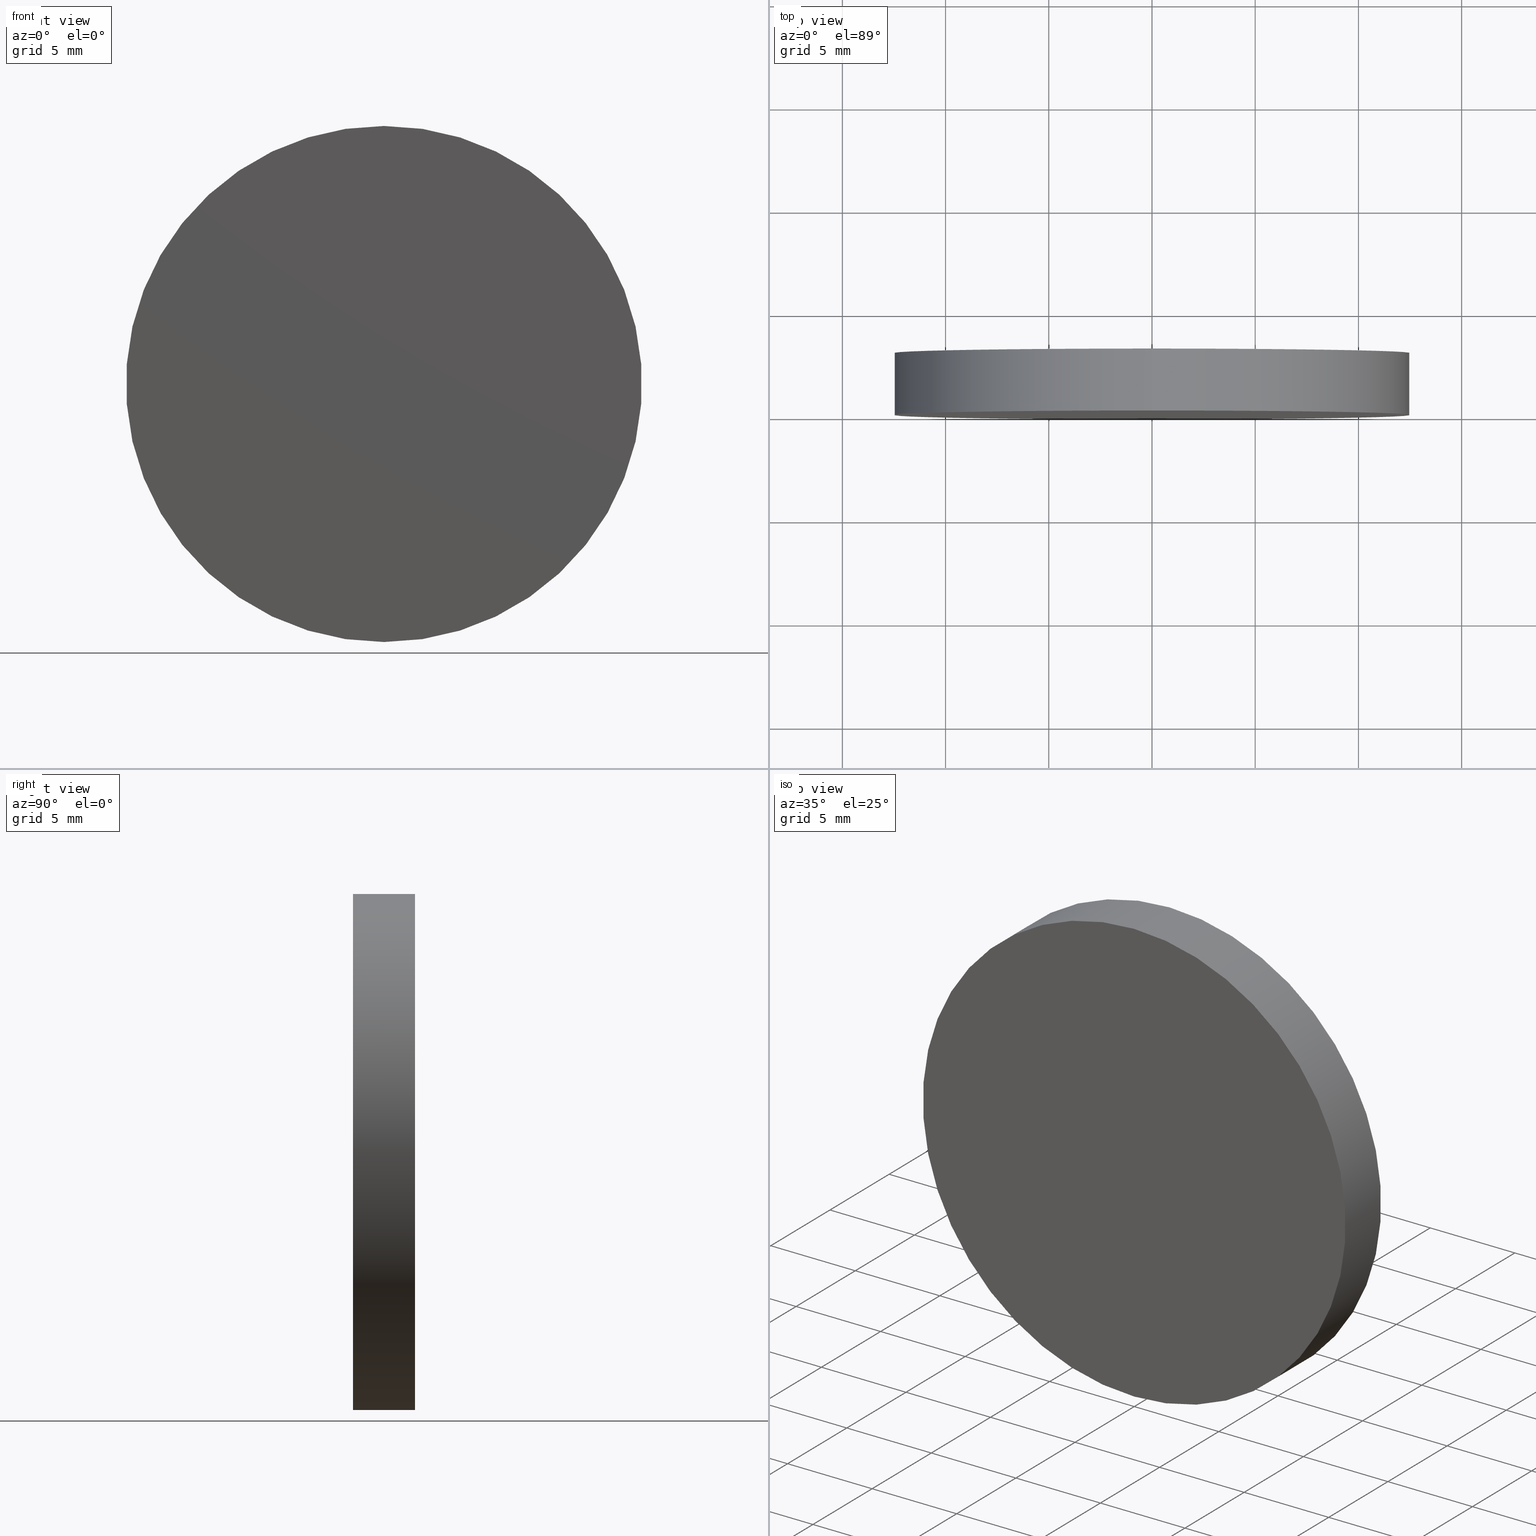
[diagram: canonical four-view strip — front | top / right | iso, engineering-drawing reading convention]
A machine part, canonical four-view strip (front | top / right | iso — engineering-drawing reading convention). The complete STEP part file that produces these views, byte-faithful:
ISO-10303-21;
HEADER;
FILE_DESCRIPTION (( 'STEP AP214' ),
    '1' );
FILE_NAME ('345503.STEP',
    '2019-08-12T02:55:29',
    ( 'user' ),
    ( '΢���й�' ),
    'SwSTEP 2.0',
    'SolidWorks 2016',
    '' );
FILE_SCHEMA (( 'AUTOMOTIVE_DESIGN' ));
ENDSEC;

DATA;
#1 = APPLICATION_CONTEXT ( 'automotive_design' ) ;
#2 = UNCERTAINTY_MEASURE_WITH_UNIT (LENGTH_MEASURE( 1.000000000000000100E-005 ), #45, 'distance_accuracy_value', 'NONE');
#3 = LINE ( 'NONE', #31, #53 ) ;
#4 =( GEOMETRIC_REPRESENTATION_CONTEXT ( 3 ) GLOBAL_UNCERTAINTY_ASSIGNED_CONTEXT ( ( #140 ) ) GLOBAL_UNIT_ASSIGNED_CONTEXT ( ( #108, #25, #97 ) ) REPRESENTATION_CONTEXT ( 'NONE', 'WORKASPACE' ) );
#5 = CIRCLE ( 'NONE', #113, 12.50000000000000000 ) ;
#6 = FILL_AREA_STYLE ('',( #7 ) ) ;
#7 = FILL_AREA_STYLE_COLOUR ( '', #50 ) ;
#8 = CARTESIAN_POINT ( 'NONE',  ( 1.530808498934191500E-015, 0.0000000000000000000, 12.50000000000000000 ) ) ;
#9 = DIRECTION ( 'NONE',  ( 0.0000000000000000000, 0.0000000000000000000, 1.000000000000000000 ) ) ;
#10 = MECHANICAL_DESIGN_GEOMETRIC_PRESENTATION_REPRESENTATION (  '', ( #67 ), #4 ) ;
#11 = SHAPE_DEFINITION_REPRESENTATION ( #30, #78 ) ;
#12 = EDGE_LOOP ( 'NONE', ( #99, #129 ) ) ;
#13 = VERTEX_POINT ( 'NONE', #8 ) ;
#14 = VERTEX_POINT ( 'NONE', #74 ) ;
#15 = ORIENTED_EDGE ( 'NONE', *, *, #125, .F. ) ;
#16 = DIRECTION ( 'NONE',  ( 0.0000000000000000000, 0.0000000000000000000, 1.000000000000000000 ) ) ;
#17 = DIRECTION ( 'NONE',  ( 0.0000000000000000000, 0.0000000000000000000, -1.000000000000000000 ) ) ;
#18 = CARTESIAN_POINT ( 'NONE',  ( 0.0000000000000000000, 3.000000000000000000, 0.0000000000000000000 ) ) ;
#19 = ADVANCED_FACE ( 'NONE', ( #23 ), #27, .T. ) ;
#20 = VERTEX_POINT ( 'NONE', #91 ) ;
#21 = CARTESIAN_POINT ( 'NONE',  ( 1.530808498934191500E-015, 3.000000000000000000, 12.50000000000000000 ) ) ;
#22 = EDGE_CURVE ( 'NONE', #14, #20, #114, .T. ) ;
#23 = FACE_OUTER_BOUND ( 'NONE', #130, .T. ) ;
#24 = DIRECTION ( 'NONE',  ( 0.0000000000000000000, 1.000000000000000000, 0.0000000000000000000 ) ) ;
#25 =( NAMED_UNIT ( * ) PLANE_ANGLE_UNIT ( ) SI_UNIT ( $, .RADIAN. ) );
#26 = CARTESIAN_POINT ( 'NONE',  ( 0.0000000000000000000, 3.000000000000000000, 0.0000000000000000000 ) ) ;
#27 = CYLINDRICAL_SURFACE ( 'NONE', #95, 12.50000000000000000 ) ;
#28 = CYLINDRICAL_SURFACE ( 'NONE', #76, 12.50000000000000000 ) ;
#29 = AXIS2_PLACEMENT_3D ( 'NONE', #48, #24, #96 ) ;
#30 = PRODUCT_DEFINITION_SHAPE ( 'NONE', 'NONE',  #38 ) ;
#31 = CARTESIAN_POINT ( 'NONE',  ( 1.530808498934191500E-015, 3.000000000000000000, 12.50000000000000000 ) ) ;
#32 = ORIENTED_EDGE ( 'NONE', *, *, #101, .F. ) ;
#33 = SURFACE_STYLE_USAGE ( .BOTH. , #117 ) ;
#34 = DIRECTION ( 'NONE',  ( -0.0000000000000000000, -1.000000000000000000, -0.0000000000000000000 ) ) ;
#35 = AXIS2_PLACEMENT_3D ( 'NONE', #106, #94, #16 ) ;
#36 = EDGE_LOOP ( 'NONE', ( #80, #41, #123, #100 ) ) ;
#37 = DIRECTION ( 'NONE',  ( 0.0000000000000000000, 0.0000000000000000000, 1.000000000000000000 ) ) ;
#38 = PRODUCT_DEFINITION ( 'δ֪', '', #49, #75 ) ;
#39 = SURFACE_STYLE_FILL_AREA ( #51 ) ;
#40 = PRESENTATION_LAYER_ASSIGNMENT (  '', '', ( #67 ) ) ;
#41 = ORIENTED_EDGE ( 'NONE', *, *, #101, .T. ) ;
#42 = AXIS2_PLACEMENT_3D ( 'NONE', #107, #73, #137 ) ;
#43 = DIRECTION ( 'NONE',  ( 1.000000000000000000, 0.0000000000000000000, 0.0000000000000000000 ) ) ;
#44 = FACE_OUTER_BOUND ( 'NONE', #12, .T. ) ;
#45 =( LENGTH_UNIT ( ) NAMED_UNIT ( * ) SI_UNIT ( .MILLI., .METRE. ) );
#46 =( LENGTH_UNIT ( ) NAMED_UNIT ( * ) SI_UNIT ( .MILLI., .METRE. ) );
#47 = EDGE_CURVE ( 'NONE', #14, #104, #87, .T. ) ;
#48 = CARTESIAN_POINT ( 'NONE',  ( 0.0000000000000000000, 3.000000000000000000, 0.0000000000000000000 ) ) ;
#49 = PRODUCT_DEFINITION_FORMATION_WITH_SPECIFIED_SOURCE ( '�κ�', '', #58, .NOT_KNOWN. ) ;
#50 = COLOUR_RGB ( '',1.000000000000000000, 1.000000000000000000, 1.000000000000000000 ) ;
#51 = FILL_AREA_STYLE ('',( #63 ) ) ;
#52 = DIRECTION ( 'NONE',  ( -0.0000000000000000000, -1.000000000000000000, -0.0000000000000000000 ) ) ;
#53 = VECTOR ( 'NONE', #139, 1000.000000000000000 ) ;
#54 = CIRCLE ( 'NONE', #35, 12.50000000000000000 ) ;
#55 = AXIS2_PLACEMENT_3D ( 'NONE', #72, #136, #124 ) ;
#56 =( NAMED_UNIT ( * ) SI_UNIT ( $, .STERADIAN. ) SOLID_ANGLE_UNIT ( ) );
#57 = PRODUCT_RELATED_PRODUCT_CATEGORY ( 'part', '', ( #58 ) ) ;
#58 = PRODUCT ( '345503', '345503', '', ( #115 ) ) ;
#59 = FACE_OUTER_BOUND ( 'NONE', #36, .T. ) ;
#60 = SURFACE_STYLE_USAGE ( .BOTH. , #135 ) ;
#61 = CARTESIAN_POINT ( 'NONE',  ( 0.0000000000000000000, 0.0000000000000000000, 0.0000000000000000000 ) ) ;
#62 = CARTESIAN_POINT ( 'NONE',  ( 0.0000000000000000000, 3.000000000000000000, 0.0000000000000000000 ) ) ;
#63 = FILL_AREA_STYLE_COLOUR ( '', #109 ) ;
#64 =( GEOMETRIC_REPRESENTATION_CONTEXT ( 3 ) GLOBAL_UNCERTAINTY_ASSIGNED_CONTEXT ( ( #118 ) ) GLOBAL_UNIT_ASSIGNED_CONTEXT ( ( #46, #116, #105 ) ) REPRESENTATION_CONTEXT ( 'NONE', 'WORKASPACE' ) );
#65 = ADVANCED_FACE ( 'NONE', ( #59 ), #28, .T. ) ;
#66 = DIRECTION ( 'NONE',  ( 0.0000000000000000000, 1.000000000000000000, 0.0000000000000000000 ) ) ;
#67 = STYLED_ITEM ( 'NONE', ( #119 ), #81 ) ;
#68 = ORIENTED_EDGE ( 'NONE', *, *, #69, .F. ) ;
#69 = EDGE_CURVE ( 'NONE', #13, #20, #5, .T. ) ;
#70 = PLANE ( 'NONE',  #42 ) ;
#71 = ORIENTED_EDGE ( 'NONE', *, *, #125, .T. ) ;
#72 = CARTESIAN_POINT ( 'NONE',  ( 0.0000000000000000000, 3.000000000000000000, 0.0000000000000000000 ) ) ;
#73 = DIRECTION ( 'NONE',  ( 0.0000000000000000000, 1.000000000000000000, 0.0000000000000000000 ) ) ;
#74 = CARTESIAN_POINT ( 'NONE',  ( 0.0000000000000000000, 3.000000000000000000, -12.50000000000000000 ) ) ;
#75 = PRODUCT_DEFINITION_CONTEXT ( 'detailed design', #1, 'design' ) ;
#76 = AXIS2_PLACEMENT_3D ( 'NONE', #26, #34, #98 ) ;
#77 = EDGE_LOOP ( 'NONE', ( #15, #68 ) ) ;
#78 = ADVANCED_BREP_SHAPE_REPRESENTATION ( '345503', ( #81, #122 ), #64 ) ;
#79 = STYLED_ITEM ( 'NONE', ( #128 ), #78 ) ;
#80 = ORIENTED_EDGE ( 'NONE', *, *, #131, .F. ) ;
#81 = MANIFOLD_SOLID_BREP ( '͹̨-����1', #112 ) ;
#82 = SURFACE_STYLE_FILL_AREA ( #6 ) ;
#83 = CIRCLE ( 'NONE', #55, 12.50000000000000000 ) ;
#84 = APPLICATION_CONTEXT ( 'automotive_design' ) ;
#85 = CARTESIAN_POINT ( 'NONE',  ( 0.0000000000000000000, 0.0000000000000000000, 0.0000000000000000000 ) ) ;
#86 = DIRECTION ( 'NONE',  ( 0.0000000000000000000, 1.000000000000000000, 0.0000000000000000000 ) ) ;
#87 = CIRCLE ( 'NONE', #89, 12.50000000000000000 ) ;
#88 = PRESENTATION_LAYER_ASSIGNMENT (  '', '', ( #79 ) ) ;
#89 = AXIS2_PLACEMENT_3D ( 'NONE', #18, #86, #9 ) ;
#90 = VECTOR ( 'NONE', #52, 1000.000000000000000 ) ;
#91 = CARTESIAN_POINT ( 'NONE',  ( 0.0000000000000000000, 0.0000000000000000000, -12.50000000000000000 ) ) ;
#92 = MECHANICAL_DESIGN_GEOMETRIC_PRESENTATION_REPRESENTATION (  '', ( #79 ), #103 ) ;
#93 = APPLICATION_PROTOCOL_DEFINITION ( 'draft international standard', 'automotive_design', 1998, #84 ) ;
#94 = DIRECTION ( 'NONE',  ( 0.0000000000000000000, 1.000000000000000000, 0.0000000000000000000 ) ) ;
#95 = AXIS2_PLACEMENT_3D ( 'NONE', #62, #121, #17 ) ;
#96 = DIRECTION ( 'NONE',  ( 0.0000000000000000000, -0.0000000000000000000, 1.000000000000000000 ) ) ;
#97 =( NAMED_UNIT ( * ) SI_UNIT ( $, .STERADIAN. ) SOLID_ANGLE_UNIT ( ) );
#98 = DIRECTION ( 'NONE',  ( 0.0000000000000000000, 0.0000000000000000000, -1.000000000000000000 ) ) ;
#99 = ORIENTED_EDGE ( 'NONE', *, *, #47, .T. ) ;
#100 = ORIENTED_EDGE ( 'NONE', *, *, #22, .F. ) ;
#101 = EDGE_CURVE ( 'NONE', #104, #13, #3, .T. ) ;
#102 = CARTESIAN_POINT ( 'NONE',  ( 0.0000000000000000000, 3.000000000000000000, -12.50000000000000000 ) ) ;
#103 =( GEOMETRIC_REPRESENTATION_CONTEXT ( 3 ) GLOBAL_UNCERTAINTY_ASSIGNED_CONTEXT ( ( #2 ) ) GLOBAL_UNIT_ASSIGNED_CONTEXT ( ( #45, #133, #56 ) ) REPRESENTATION_CONTEXT ( 'NONE', 'WORKASPACE' ) );
#104 = VERTEX_POINT ( 'NONE', #21 ) ;
#105 =( NAMED_UNIT ( * ) SI_UNIT ( $, .STERADIAN. ) SOLID_ANGLE_UNIT ( ) );
#106 = CARTESIAN_POINT ( 'NONE',  ( 0.0000000000000000000, 0.0000000000000000000, 0.0000000000000000000 ) ) ;
#107 = CARTESIAN_POINT ( 'NONE',  ( 0.0000000000000000000, 0.0000000000000000000, 0.0000000000000000000 ) ) ;
#108 =( LENGTH_UNIT ( ) NAMED_UNIT ( * ) SI_UNIT ( .MILLI., .METRE. ) );
#109 = COLOUR_RGB ( '',1.000000000000000000, 1.000000000000000000, 1.000000000000000000 ) ;
#110 = ADVANCED_FACE ( 'NONE', ( #44 ), #126, .T. ) ;
#111 = APPLICATION_PROTOCOL_DEFINITION ( 'draft international standard', 'automotive_design', 1998, #1 ) ;
#112 = CLOSED_SHELL ( 'NONE', ( #65, #19, #110, #120 ) ) ;
#113 = AXIS2_PLACEMENT_3D ( 'NONE', #61, #66, #127 ) ;
#114 = LINE ( 'NONE', #102, #90 ) ;
#115 = PRODUCT_CONTEXT ( 'NONE', #84, 'mechanical' ) ;
#116 =( NAMED_UNIT ( * ) PLANE_ANGLE_UNIT ( ) SI_UNIT ( $, .RADIAN. ) );
#117 = SURFACE_SIDE_STYLE ('',( #39 ) ) ;
#118 = UNCERTAINTY_MEASURE_WITH_UNIT (LENGTH_MEASURE( 1.000000000000000100E-005 ), #46, 'distance_accuracy_value', 'NONE');
#119 = PRESENTATION_STYLE_ASSIGNMENT (( #33 ) ) ;
#120 = ADVANCED_FACE ( 'NONE', ( #134 ), #70, .F. ) ;
#121 = DIRECTION ( 'NONE',  ( -0.0000000000000000000, -1.000000000000000000, -0.0000000000000000000 ) ) ;
#122 = AXIS2_PLACEMENT_3D ( 'NONE', #85, #37, #43 ) ;
#123 = ORIENTED_EDGE ( 'NONE', *, *, #69, .T. ) ;
#124 = DIRECTION ( 'NONE',  ( 0.0000000000000000000, 0.0000000000000000000, 1.000000000000000000 ) ) ;
#125 = EDGE_CURVE ( 'NONE', #20, #13, #54, .T. ) ;
#126 = PLANE ( 'NONE',  #29 ) ;
#127 = DIRECTION ( 'NONE',  ( 0.0000000000000000000, 0.0000000000000000000, 1.000000000000000000 ) ) ;
#128 = PRESENTATION_STYLE_ASSIGNMENT (( #60 ) ) ;
#129 = ORIENTED_EDGE ( 'NONE', *, *, #131, .T. ) ;
#130 = EDGE_LOOP ( 'NONE', ( #32, #138, #132, #71 ) ) ;
#131 = EDGE_CURVE ( 'NONE', #104, #14, #83, .T. ) ;
#132 = ORIENTED_EDGE ( 'NONE', *, *, #22, .T. ) ;
#133 =( NAMED_UNIT ( * ) PLANE_ANGLE_UNIT ( ) SI_UNIT ( $, .RADIAN. ) );
#134 = FACE_OUTER_BOUND ( 'NONE', #77, .T. ) ;
#135 = SURFACE_SIDE_STYLE ('',( #82 ) ) ;
#136 = DIRECTION ( 'NONE',  ( 0.0000000000000000000, 1.000000000000000000, 0.0000000000000000000 ) ) ;
#137 = DIRECTION ( 'NONE',  ( 0.0000000000000000000, -0.0000000000000000000, 1.000000000000000000 ) ) ;
#138 = ORIENTED_EDGE ( 'NONE', *, *, #47, .F. ) ;
#139 = DIRECTION ( 'NONE',  ( -0.0000000000000000000, -1.000000000000000000, -0.0000000000000000000 ) ) ;
#140 = UNCERTAINTY_MEASURE_WITH_UNIT (LENGTH_MEASURE( 1.000000000000000100E-005 ), #108, 'distance_accuracy_value', 'NONE');
ENDSEC;
END-ISO-10303-21;
